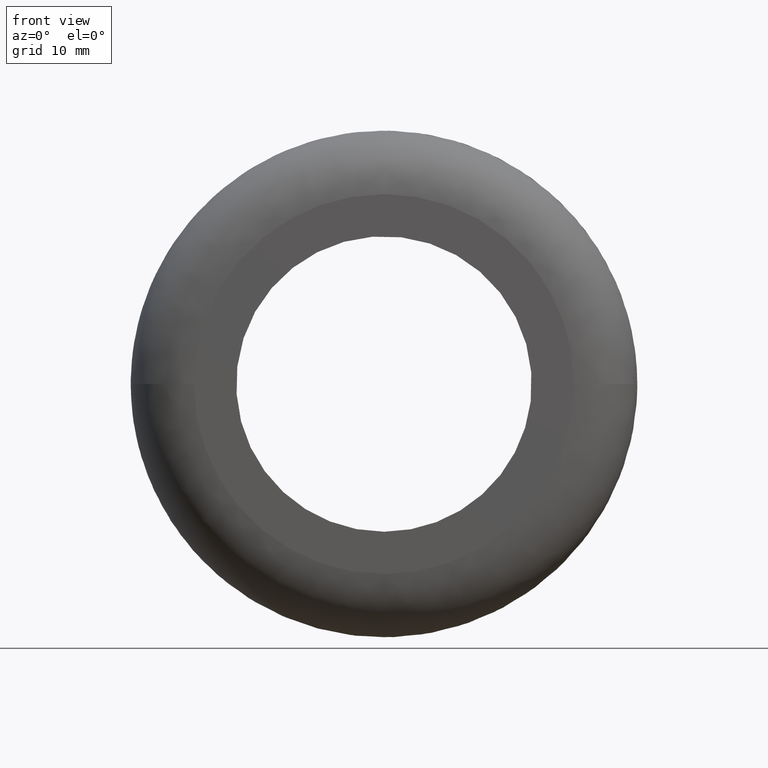
[diagram: clean part render]
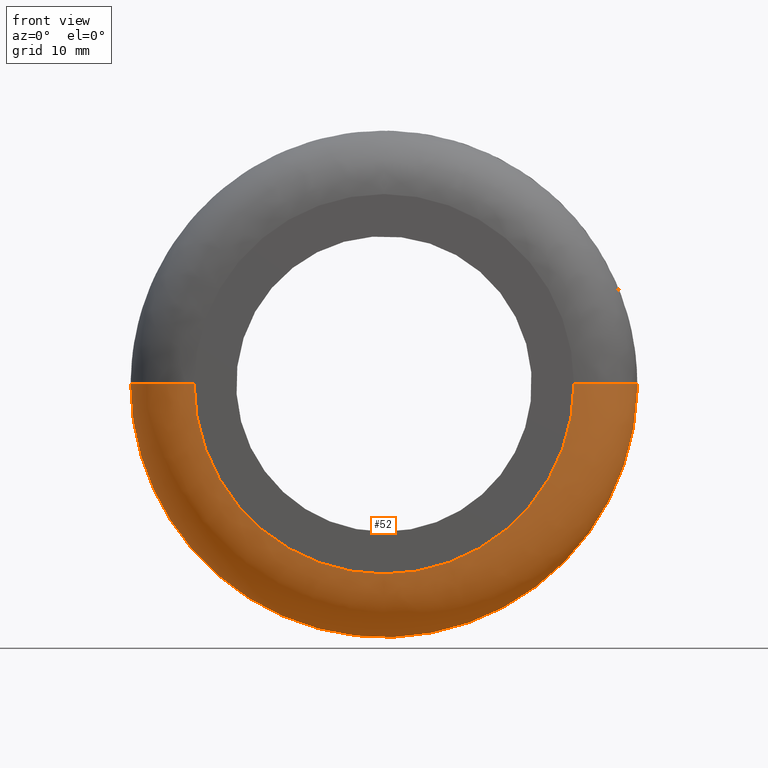
[diagram: same view with one face highlighted and labeled with its STEP entity id]
A machine part, front view. The second image highlights one B-rep face of the part: STEP entity #52.
In plain terms, the highlighted face is a freeform B-spline surface patch.
Its self-contained STEP definition (entity closure, byte-faithful):
#52=ADVANCED_FACE('',(#181),#180,.T.);
#180=( BOUNDED_SURFACE() B_SPLINE_SURFACE( 2,2,((#284,#285,#286,#287,#288),(#289,#290,#291,#292,#293),(#294,#295,#296,#297,#298),(#299,#300,#301,#302,#303),(#304,#305,#306,#307,#308)), .UNSPECIFIED.,.F.,.F.,.F.) B_SPLINE_SURFACE_WITH_KNOTS((3,2,3),(3,2,3),(0.00000000000E+000,5.00000000000E-001,1.00000000000E+000),(0.00000000000E+000,5.00000000000E-001,1.00000000000E+000), .UNSPECIFIED. ) GEOMETRIC_REPRESENTATION_ITEM() RATIONAL_B_SPLINE_SURFACE(((1.00000000000E+000,7.07106781087E-001,1.00000000000E+000,7.07106781087E-001,1.00000000000E+000),(7.07106781187E-001,4.99999999930E-001,7.07106781187E-001,4.99999999930E-001,7.07106781187E-001),(1.00000000000E+000,7.07106781087E-001,1.00000000000E+000,7.07106781087E-001,1.00000000000E+000),(7.07106781187E-001,4.99999999930E-001,7.07106781187E-001,4.99999999930E-001,7.07106781187E-001),(1.00000000000E+000,7.07106781087E-001,1.00000000000E+000,7.07106781087E-001,1.00000000000E+000))) REPRESENTATION_ITEM('') SURFACE() );
#181=FACE_OUTER_BOUND('',#309,.T.);
#284=CARTESIAN_POINT('',(-2.40000000000E+001,6.00000000000E+000,-4.02325742166E-015));
#285=CARTESIAN_POINT('',(-2.40000000000E+001,-1.68431103296E-009,-4.65761157700E-015));
#286=CARTESIAN_POINT('',(-1.79999999983E+001,-8.88178419700E-016,-3.92284776433E-015));
#287=CARTESIAN_POINT('',(-1.19999999966E+001,1.68430852081E-009,-3.18808395165E-015));
#288=CARTESIAN_POINT('',(-1.20000000000E+001,6.00000000337E+000,-2.55372979672E-015));
#289=CARTESIAN_POINT('',(-2.40000000000E+001,6.00000000000E+000,-2.40000000000E+001));
#290=CARTESIAN_POINT('',(-2.40000000000E+001,-1.68430821603E-009,-2.40000000000E+001));
#291=CARTESIAN_POINT('',(-1.79999999983E+001,1.47158218899E-015,-1.79999999983E+001));
#292=CARTESIAN_POINT('',(-1.19999999966E+001,1.68430956137E-009,-1.19999999966E+001));
#293=CARTESIAN_POINT('',(-1.20000000000E+001,6.00000000337E+000,-1.20000000000E+001));
#294=CARTESIAN_POINT('',(-5.46941481371E-015,6.00000000000E+000,-2.40000000000E+001));
#295=CARTESIAN_POINT('',(-6.13648419865E-015,-1.68431103296E-009,-2.40000000000E+001));
#296=CARTESIAN_POINT('',(-6.50385397112E-015,-8.88178419700E-016,-1.79999999983E+001));
#297=CARTESIAN_POINT('',(-6.87122374359E-015,1.68430852081E-009,-1.19999999966E+001));
#298=CARTESIAN_POINT('',(-6.20415435843E-015,6.00000000337E+000,-1.20000000000E+001));
#299=CARTESIAN_POINT('',(2.40000000000E+001,6.00000000000E+000,-2.40000000000E+001));
#300=CARTESIAN_POINT('',(2.40000000000E+001,-1.68431406539E-009,-2.40000000000E+001));
#301=CARTESIAN_POINT('',(1.79999999983E+001,-2.66453525910E-015,-1.79999999983E+001));
#302=CARTESIAN_POINT('',(1.19999999966E+001,1.68430726473E-009,-1.19999999966E+001));
#303=CARTESIAN_POINT('',(1.20000000000E+001,6.00000000337E+000,-1.20000000000E+001));
#304=CARTESIAN_POINT('',(2.40000000000E+001,6.00000000000E+000,-1.08429924127E-015));
#305=CARTESIAN_POINT('',(2.40000000000E+001,-1.68431605725E-009,-1.71865339661E-015));
#306=CARTESIAN_POINT('',(1.79999999983E+001,-5.32907051820E-015,-1.71862912924E-015));
#307=CARTESIAN_POINT('',(1.19999999966E+001,1.68430600866E-009,-1.71860486186E-015));
#308=CARTESIAN_POINT('',(1.20000000000E+001,6.00000000337E+000,-1.08425070652E-015));
#309=EDGE_LOOP('',(#460,#461,#462,#463,#464,#465));
#460=ORIENTED_EDGE('',*,*,#507,.F.);
#461=ORIENTED_EDGE('',*,*,#534,.F.);
#462=ORIENTED_EDGE('',*,*,#517,.T.);
#463=ORIENTED_EDGE('',*,*,#515,.T.);
#464=ORIENTED_EDGE('',*,*,#514,.T.);
#465=ORIENTED_EDGE('',*,*,#535,.T.);
#507=EDGE_CURVE('',#665,#672,#673,.T.);
#514=EDGE_CURVE('',#720,#713,#721,.T.);
#515=EDGE_CURVE('',#727,#720,#728,.T.);
#517=EDGE_CURVE('',#740,#727,#741,.T.);
#534=EDGE_CURVE('',#740,#665,#852,.T.);
#535=EDGE_CURVE('',#713,#672,#858,.T.);
#665=VERTEX_POINT('',#967);
#672=VERTEX_POINT('',#972);
#673=CIRCLE('',#976,1.80000000004E+001);
#713=VERTEX_POINT('',#999);
#720=VERTEX_POINT('',#1004);
#721=CIRCLE('',#1008,2.40000000000E+001);
#727=VERTEX_POINT('',#1009);
#728=CIRCLE('',#1013,2.40000000000E+001);
#740=VERTEX_POINT('',#1016);
#741=CIRCLE('',#1020,2.40000000000E+001);
#852=(BOUNDED_CURVE() B_SPLINE_CURVE(2,(#1082,#1083,#1084),.UNSPECIFIED.,.F.,.F.) B_SPLINE_CURVE_WITH_KNOTS((3,3),(0.00000000000E+000,5.00000000000E-001),.UNSPECIFIED.) CURVE() GEOMETRIC_REPRESENTATION_ITEM() RATIONAL_B_SPLINE_CURVE((1.00000000000E+000,7.07106781087E-001,1.00000000000E+000)) REPRESENTATION_ITEM('') );
#858=(BOUNDED_CURVE() B_SPLINE_CURVE(3,(#1085,#1086,#1087,#1088,#1089),.UNSPECIFIED.,.F.,.F.) B_SPLINE_CURVE_WITH_KNOTS((4,1,4),(0.00000000000E+000,2.50000031493E-001,5.00000054662E-001),.UNSPECIFIED.) CURVE() GEOMETRIC_REPRESENTATION_ITEM() RATIONAL_B_SPLINE_CURVE((1.00000000000E+000,1.00000000000E+000,1.00000000000E+000,1.00000000000E+000,1.00000000000E+000)) REPRESENTATION_ITEM('') );
#967=CARTESIAN_POINT('',(-1.80000000004E+001,-1.44355652456E-016,-2.20981799232E-015));
#972=CARTESIAN_POINT('',(1.79999999033E+001,-1.44617201333E-016,-1.86807331438E-003));
#973=CARTESIAN_POINT('',(-7.15161263543E-011,-1.44355652407E-016,3.50175000108E-010));
#974=DIRECTION('',(1.17929731830E-032,-1.00000000000E+000,1.40009963752E-016));
#975=DIRECTION('',(3.97252601192E-012,1.40009963752E-016,1.00000000000E+000));
#976=AXIS2_PLACEMENT_3D('',#973,#974,#975);
#999=CARTESIAN_POINT('',(2.40000000000E+001,6.00000000004E+000,1.24665426255E-005));
#1004=CARTESIAN_POINT('',(2.39924205428E+001,5.99999999996E+000,-6.03122290646E-001));
#1005=CARTESIAN_POINT('',(3.55271367880E-015,5.99999999993E+000,1.77635683940E-015));
#1006=DIRECTION('',(4.79059104833E-012,-1.00000000000E+000,1.43268947941E-010));
#1007=DIRECTION('',(-9.99684189283E-001,-1.18871579247E-012,2.51300954436E-002));
#1008=AXIS2_PLACEMENT_3D('',#1005,#1006,#1007);
#1009=CARTESIAN_POINT('',(-1.57041509848E+001,6.00000000000E+000,-1.81488192962E+001));
#1010=CARTESIAN_POINT('',(-3.11750625315E-012,5.99999999996E+000,3.19744231092E-012));
#1011=DIRECTION('',(1.30841038218E-017,-1.00000000000E+000,-1.84778118732E-012));
#1012=DIRECTION('',(-1.29896093881E-013,-1.84778118732E-012,1.00000000000E+000));
#1013=AXIS2_PLACEMENT_3D('',#1010,#1011,#1012);
#1016=CARTESIAN_POINT('',(-2.40000000000E+001,6.00000000004E+000,-4.02919840921E-015));
#1017=CARTESIAN_POINT('',(7.81597009336E-014,5.99999999977E+000,2.66453525910E-014));
#1018=DIRECTION('',(-1.15855255550E-011,-1.00000000000E+000,-1.43095178703E-010));
#1019=DIRECTION('',(9.99684189283E-001,-7.98587122356E-012,-2.51300954436E-002));
#1020=AXIS2_PLACEMENT_3D('',#1017,#1018,#1019);
#1082=CARTESIAN_POINT('',(-2.40000000000E+001,6.00000000000E+000,-4.02325742166E-015));
#1083=CARTESIAN_POINT('',(-2.40000000000E+001,-1.68431103296E-009,-4.65761157700E-015));
#1084=CARTESIAN_POINT('',(-1.79999999983E+001,-8.88178419700E-016,-3.92284776433E-015));
#1085=CARTESIAN_POINT('',(2.40000000000E+001,6.00000000000E+000,3.55271367880E-015));
#1086=CARTESIAN_POINT('',(2.40145779140E+001,4.43613394491E+000,3.50501604425E-015));
#1087=CARTESIAN_POINT('',(2.26960591862E+001,1.30394003450E+000,2.92311816099E-015));
#1088=CARTESIAN_POINT('',(1.95638650708E+001,-1.45781535412E-002,1.74811503188E-015));
#1089=CARTESIAN_POINT('',(1.79999990707E+001,6.69380371146E-014,1.18423783931E-015));